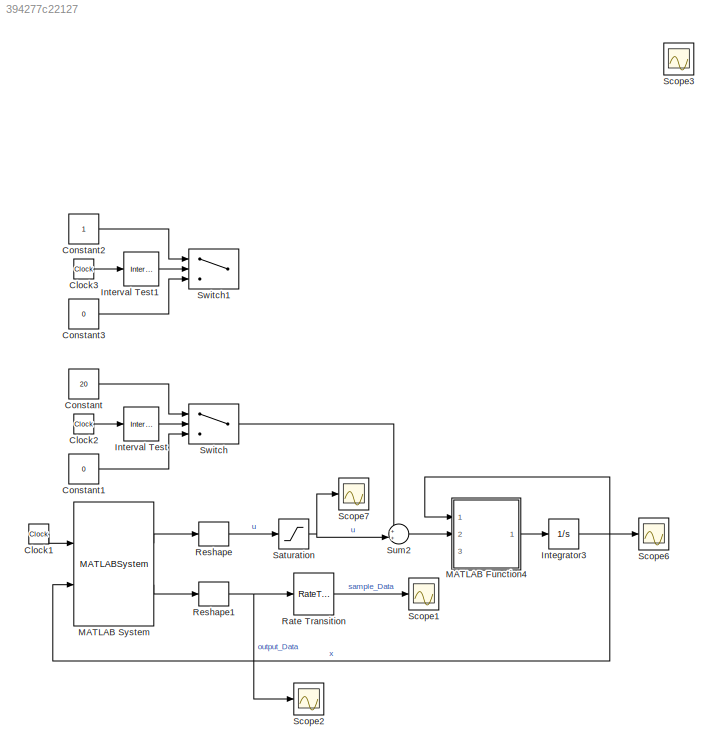
MODEL slx_394277c22127
KIND model
CONFIG AbsTol = auto
CONFIG FixedStep = 1e-3
CONFIG MaxStep = 1e-3
CONFIG MinStep = auto
CONFIG RelTol = 1e-3
CONFIG SampleTimeConstraint = Unconstrained
CONFIG Solver = ode45
CONFIG SolverMode = Auto
CONFIG SolverName = ode45
CONFIG StartTime = 0.0
CONFIG StopTime = 100
BLOCK [Clock] Clock1
BLOCK [Clock] Clock2
BLOCK [Clock] Clock3
BLOCK [Constant] Constant
  Value = 20
BLOCK [Constant] Constant1
  Value = 0
BLOCK [Constant] Constant2
BLOCK [Constant] Constant3
  Value = 0
BLOCK [Integrator] Integrator3
  InitialCondition = x0
  Ports = [1, 1]
BLOCK [Reference] Interval Test  REF=simulink/Logic and Bit
Operations/Interval Test
  Ports = [1, 1]
  SourceBlock = simulink/Logic and Bit\nOperations/Interval Test
  SourceType = Interval Test
BLOCK [Reference] Interval Test1  REF=simulink/Logic and Bit
Operations/Interval Test
  Ports = [1, 1]
  SourceBlock = simulink/Logic and Bit\nOperations/Interval Test
  SourceType = Interval Test
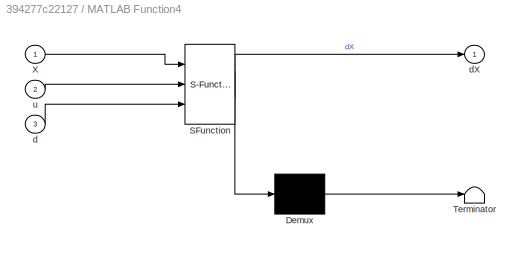
BLOCK [SubSystem] MATLAB Function4
  ErrorFcn = Stateflow.Translate.translate
  PermitHierarchicalResolution = ExplicitOnly
  Ports = [3, 1]
  RequestExecContextInheritance = off
  SFBlockType = MATLAB Function
  TreatAsAtomicUnit = on
  Variant = off
BLOCK [Demux] MATLAB Function4/ Demux 
  Outputs = 1
  Ports = [1, 1]
BLOCK [S-Function] MATLAB Function4/ SFunction 
  EnableBusSupport = on
  FunctionName = sf_sfun
  PortCounts = [3 2]
  Ports = [3, 2]
  SFunctionDeploymentMode = off
  Tag = Stateflow S-Function nonlinearSimMPC 6
BLOCK [Terminator] MATLAB Function4/ Terminator 
BLOCK [Inport] MATLAB Function4/X
  IconDisplay = Port number
BLOCK [Inport] MATLAB Function4/d
  IconDisplay = Port number
  Port = 3
BLOCK [Outport] MATLAB Function4/dX
  IconDisplay = Port number
BLOCK [Inport] MATLAB Function4/u
  IconDisplay = Port number
  Port = 2
BLOCK [MATLABSystem] MATLAB System
  MaskDisplay = disp('ClassControllerEquiState');\nport_label('input',1,'t');\nport_label('input',2,'x');\nport_label('output',1,'u');\nport_label('output',2,'output_Data');
  MaskType = ClassControllerEquiState
  Ports = [2, 2]
  SimulateUsing = Code generation
  System = ClassControllerEquiState
  Taction = Taction
BLOCK [RateTransition] Rate Transition
  OutPortSampleTime = 2
BLOCK [Reshape] Reshape
  Ports = [1, 1]
BLOCK [Reshape] Reshape1
  Ports = [1, 1]
BLOCK [Saturate] Saturation
  Commented = through
  InputPortMap = u0
  LowerLimit = -30
  Ports = [1, 1]
  UpperLimit = 30
BLOCK [Scope] Scope1
  Ports = [1]
  ScopeSpecificationString = Simulink.scopes.TimeScopeBlockCfg('CurrentConfiguration', extmgr.ConfigurationSet(extmgr.Configuration('Core','General UI',true),extmgr.Configuration('Core','Source UI',true),extmgr.Configuration('Sources','WiredSimulink',true,'DataLoggingVariableName','ScopeData1'),extmgr.Configuration('Visuals','Time Domain',true,'SerializedDisplays',{struct('MinYLimReal','-0.32879','MaxYLimReal','0.03882','YLab...<+1463ch>
BLOCK [Scope] Scope2
  Ports = [1]
  ScopeSpecificationString = Simulink.scopes.TimeScopeBlockCfg('CurrentConfiguration', extmgr.ConfigurationSet(extmgr.Configuration('Core','General UI',true),extmgr.Configuration('Core','Source UI',true),extmgr.Configuration('Sources','WiredSimulink',true,'DataLoggingVariableName','ScopeData1'),extmgr.Configuration('Visuals','Time Domain',true,'SerializedDisplays',{struct('MinYLimReal','-1.03846','MaxYLimReal','1.08253','YLab...<+1463ch>
BLOCK [Scope] Scope3
  IOType = viewer
  Ports = []
  ScopeSpecificationString = Simulink.scopes.TimeScopeBlockCfg('CurrentConfiguration', extmgr.ConfigurationSet(extmgr.Configuration('Core','General UI',true),extmgr.Configuration('Core','Source UI',true),extmgr.Configuration('Sources','WiredSimulink',true,'DataLoggingVariableName','ScopeData3'),extmgr.Configuration('Visuals','Time Domain',true,'SerializedDisplays',{struct('MinYLimReal','-11.4016','MaxYLimReal','3.16282','YLab...<+1388ch>
BLOCK [Scope] Scope6
  Ports = [1]
  ScopeSpecificationString = Simulink.scopes.TimeScopeBlockCfg('CurrentConfiguration', extmgr.ConfigurationSet(extmgr.Configuration('Core','General UI',true),extmgr.Configuration('Core','Source UI',true),extmgr.Configuration('Sources','WiredSimulink',true,'DataLoggingVariableName','ScopeData1'),extmgr.Configuration('Visuals','Time Domain',true,'SerializedDisplays',{struct('MinYLimReal','-2.87694','MaxYLimReal','2.36016','YLab...<+1480ch>
BLOCK [Scope] Scope7
  Ports = [1]
  ScopeSpecificationString = Simulink.scopes.TimeScopeBlockCfg('CurrentConfiguration', extmgr.ConfigurationSet(extmgr.Configuration('Core','General UI',true),extmgr.Configuration('Core','Source UI',true),extmgr.Configuration('Sources','WiredSimulink',true,'DataLoggingVariableName','ScopeData2'),extmgr.Configuration('Visuals','Time Domain',true,'SerializedDisplays',{struct('MinYLimReal','-63.492','MaxYLimReal','17.17087','YLab...<+1458ch>
BLOCK [Sum] Sum2
  IconShape = round
  InputSameDT = off
  Inputs = ++|
  OutDataTypeStr = Inherit: Inherit via internal rule
  Ports = [2, 1]
  SaturateOnIntegerOverflow = off
BLOCK [Switch] Switch
  Criteria = u2 > Threshold
  InputSameDT = off
  SaturateOnIntegerOverflow = off
BLOCK [Switch] Switch1
  Criteria = u2 > Threshold
  InputSameDT = off
  SaturateOnIntegerOverflow = off
LINE Clock1:1 -> MATLAB System:1
LINE Clock2:1 -> Interval Test:1
LINE Clock3:1 -> Interval Test1:1
LINE Constant1:1 -> Switch:3
LINE Constant2:1 -> Switch1:1
LINE Constant3:1 -> Switch1:3
LINE Constant:1 -> Switch:1
NET Integrator3:1 -> MATLAB Function4:1, MATLAB System:2, Scope6:1
LINE Interval Test1:1 -> Switch1:2
LINE Interval Test:1 -> Switch:2
LINE MATLAB Function4:1 -> Integrator3:1
LINE MATLAB System:1 -> Reshape:1
LINE MATLAB System:2 -> Reshape1:1
LINE Rate Transition:1 -> Scope1:1
NET Reshape1:1 -> Rate Transition:1, Scope2:1
LINE Reshape:1 -> Saturation:1
NET Saturation:1 -> Scope7:1, Sum2:2
LINE Sum2:1 -> MATLAB Function4:2
LINE Switch:1 -> Sum2:1
note: NET lines group one-source signal fan-out (src -> all destinations, sorted); 1:1 wires keep LINE
CHART MATLAB Function4 states=1 transitions=1
  STATE_LABEL 'eML_blk_kernel()'
  STATE_LABEL "SCRIPT:\nfunction dX = fcn(X, u, d)\n%#codegen\n\n% X = [0 pi/2 0 0]';\n% u = 0;\n%%\nx = X(1:2);\nx(2) = x(2) + pi/2;\nxdot = X(3:4);\n\nM = ([[2,-sin(x(2,:))/2];[-sin(x(2,:))/2,1/3]]);\nf = ([[u(:,1)-xdot(1,:)/10+(xdot(2,:)^2*cos(x(2,:)))/2];[-xdot(2,:)/100-(981*cos(x(2,:)))/200]]);\n\nf(2) = f(2) + d;\nxddot = M\\f;\n\ndX = [xdot; xddot];\n\n\n% y = u;"
